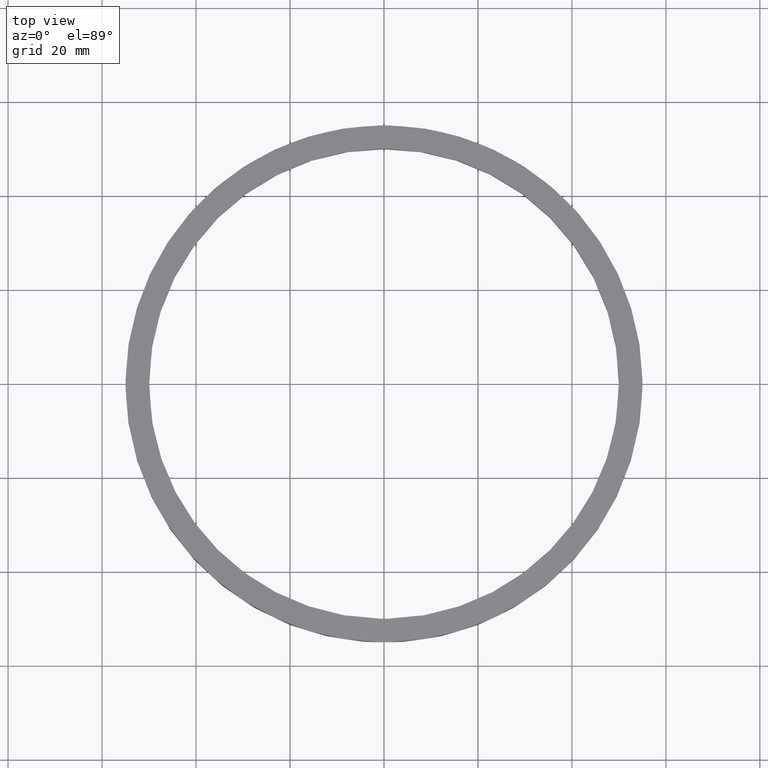
[diagram: clean part render]
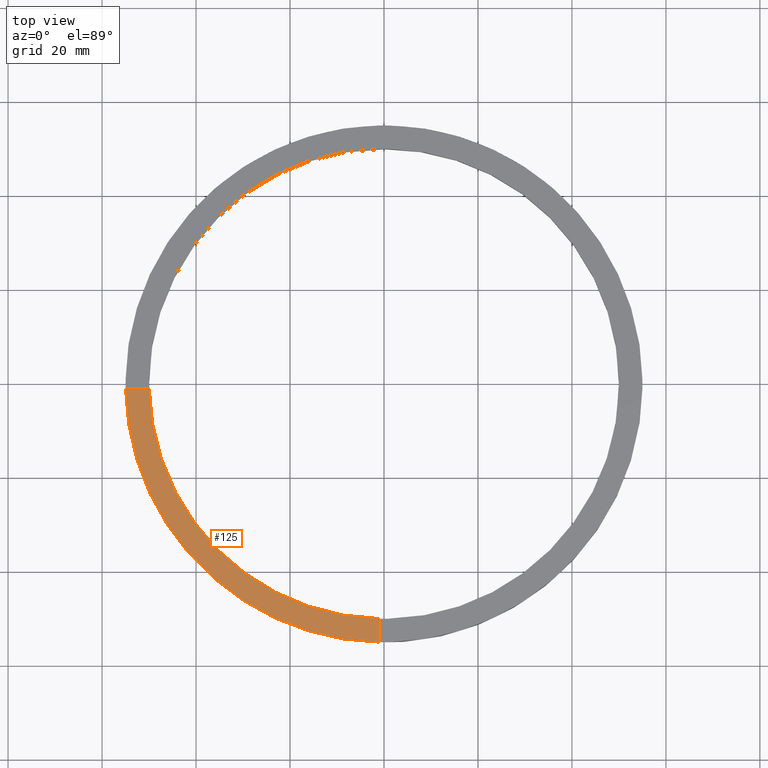
[diagram: same view with one face highlighted and labeled with its STEP entity id]
A machine part, top view. The second image highlights one B-rep face of the part: STEP entity #125.
In plain terms, the highlighted planar face has unit normal (0, 0, 1).
Its self-contained STEP definition (entity closure, byte-faithful):
#37 = CARTESIAN_POINT ( 'NONE',  ( -49.98999899979995121, -1.000000000000031974, 5.500000000000000000 ) ) ;
#56 = EDGE_CURVE ( 'NONE', #482, #685, #247, .T. ) ;
#57 = CARTESIAN_POINT ( 'NONE',  ( -1.000000000000156097, -49.98999899979995121, 5.500000000000000000 ) ) ;
#59 = DIRECTION ( 'NONE',  ( 1.301042606982605074E-16, -1.000000000000000000, 0.000000000000000000 ) ) ;
#73 = DIRECTION ( 'NONE',  ( 1.000000000000000000, 0.000000000000000000, 0.000000000000000000 ) ) ;
#105 = DIRECTION ( 'NONE',  ( 0.000000000000000000, 0.000000000000000000, 1.000000000000000000 ) ) ;
#106 = CARTESIAN_POINT ( 'NONE',  ( 0.000000000000000000, 0.000000000000000000, 5.500000000000000000 ) ) ;
#119 = PLANE ( 'NONE',  #557 ) ;
#125 = ADVANCED_FACE ( 'NONE', ( #304 ), #119, .T. ) ;
#133 = VECTOR ( 'NONE', #59, 1000.000000000000000 ) ;
#191 = VERTEX_POINT ( 'NONE', #37 ) ;
#200 = VERTEX_POINT ( 'NONE', #57 ) ;
#207 = ORIENTED_EDGE ( 'NONE', *, *, #342, .F. ) ;
#221 = DIRECTION ( 'NONE',  ( 1.000000000000000000, 0.000000000000000000, -0.000000000000000000 ) ) ;
#238 = AXIS2_PLACEMENT_3D ( 'NONE', #759, #105, #566 ) ;
#247 = CIRCLE ( 'NONE', #367, 55.00000000000000000 ) ;
#259 = EDGE_CURVE ( 'NONE', #482, #191, #546, .T. ) ;
#304 = FACE_OUTER_BOUND ( 'NONE', #485, .T. ) ;
#342 = EDGE_CURVE ( 'NONE', #191, #200, #388, .T. ) ;
#367 = AXIS2_PLACEMENT_3D ( 'NONE', #468, #765, #73 ) ;
#375 = DIRECTION ( 'NONE',  ( 1.000000000000000000, 1.951563910473907735E-16, -0.000000000000000000 ) ) ;
#388 = CIRCLE ( 'NONE', #238, 50.00000000000000000 ) ;
#393 = CARTESIAN_POINT ( 'NONE',  ( -1.000000000000156763, -45.00000000000017764, 5.500000000000000000 ) ) ;
#398 = CARTESIAN_POINT ( 'NONE',  ( -1.000000000000155431, -54.99090833947007440, 5.500000000000000000 ) ) ;
#413 = LINE ( 'NONE', #393, #133 ) ;
#450 = ORIENTED_EDGE ( 'NONE', *, *, #636, .F. ) ;
#460 = ORIENTED_EDGE ( 'NONE', *, *, #259, .F. ) ;
#468 = CARTESIAN_POINT ( 'NONE',  ( 0.000000000000000000, 0.000000000000000000, 5.500000000000000000 ) ) ;
#482 = VERTEX_POINT ( 'NONE', #652 ) ;
#485 = EDGE_LOOP ( 'NONE', ( #450, #207, #460, #684 ) ) ;
#524 = DIRECTION ( 'NONE',  ( 0.000000000000000000, 0.000000000000000000, 1.000000000000000000 ) ) ;
#540 = CARTESIAN_POINT ( 'NONE',  ( -45.00000000000018474, -1.000000000000031086, 5.500000000000000000 ) ) ;
#546 = LINE ( 'NONE', #540, #565 ) ;
#557 = AXIS2_PLACEMENT_3D ( 'NONE', #106, #524, #221 ) ;
#565 = VECTOR ( 'NONE', #375, 1000.000000000000000 ) ;
#566 = DIRECTION ( 'NONE',  ( 1.000000000000000000, 0.000000000000000000, 0.000000000000000000 ) ) ;
#636 = EDGE_CURVE ( 'NONE', #200, #685, #413, .T. ) ;
#652 = CARTESIAN_POINT ( 'NONE',  ( -54.99090833947007440, -1.000000000000032863, 5.500000000000000000 ) ) ;
#684 = ORIENTED_EDGE ( 'NONE', *, *, #56, .T. ) ;
#685 = VERTEX_POINT ( 'NONE', #398 ) ;
#759 = CARTESIAN_POINT ( 'NONE',  ( 0.000000000000000000, 0.000000000000000000, 5.500000000000000000 ) ) ;
#765 = DIRECTION ( 'NONE',  ( 0.000000000000000000, 0.000000000000000000, 1.000000000000000000 ) ) ;